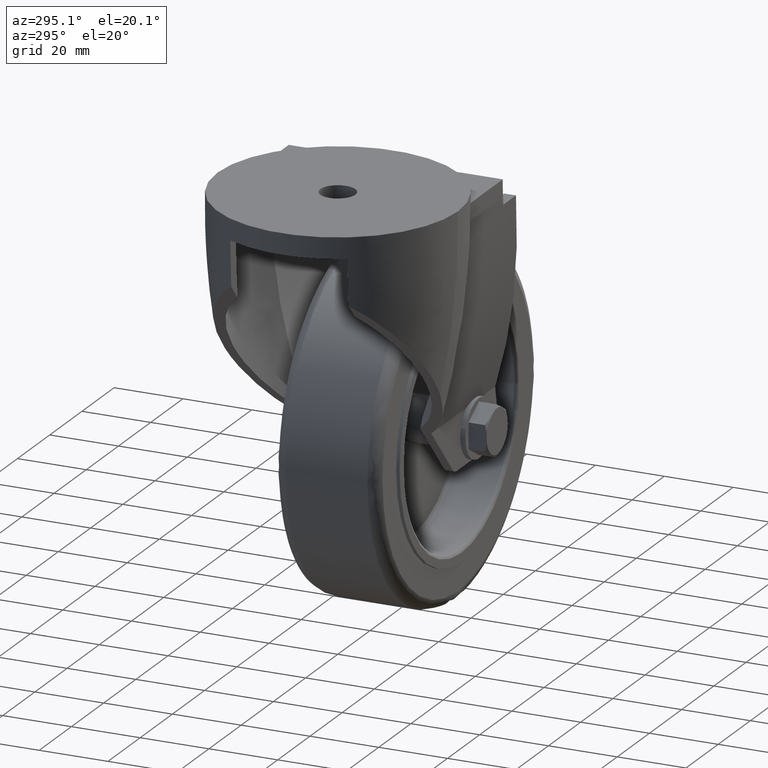
[diagram: clean part render]
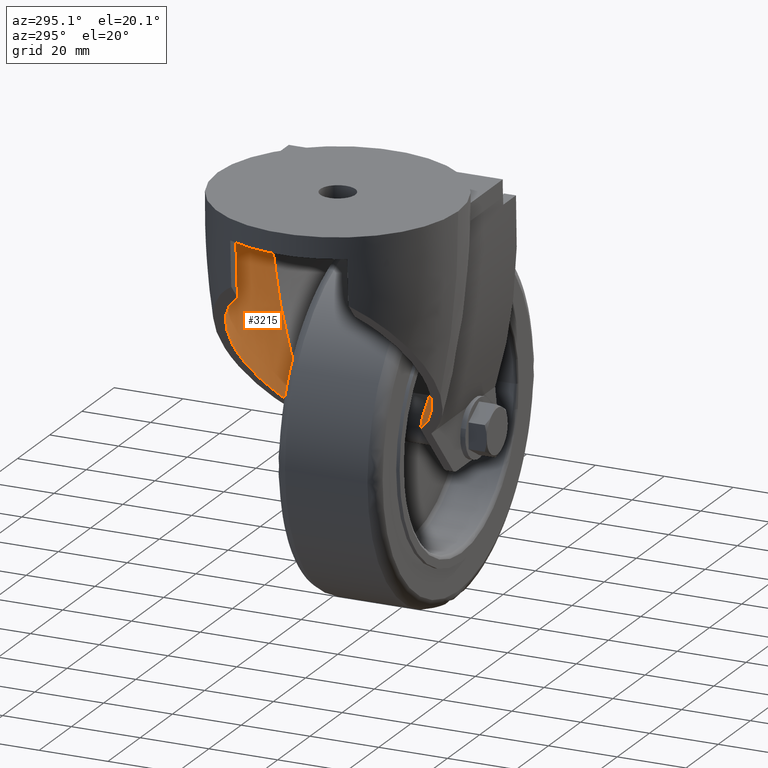
[diagram: same view with one face highlighted and labeled with its STEP entity id]
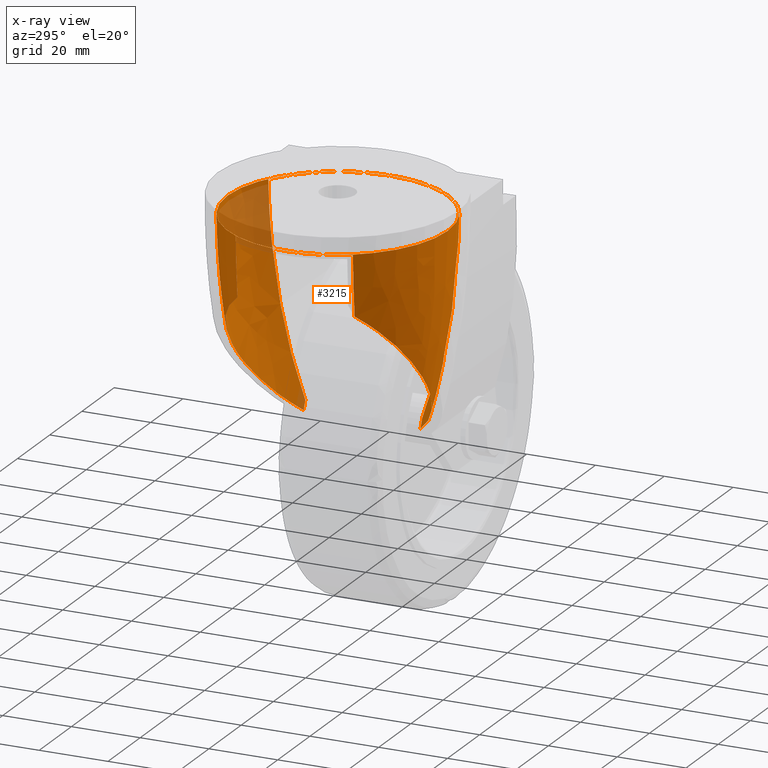
[diagram: x-ray of the same camera — body ghosted, the highlighted face saturated]
A machine part, auxiliary view. The second image highlights one B-rep face of the part: STEP entity #3215.
The next image is the same camera in x-ray: the body ghosted, the highlighted face saturated — about 12% of this face is hidden behind the body in this view.
In plain terms, the highlighted face is a freeform B-spline surface patch.
Its self-contained STEP definition (entity closure, byte-faithful):
#3009=CARTESIAN_POINT('',(-3.171995E-013,-22.586357826698134,-71.848894879973287));
#3010=CARTESIAN_POINT('',(-22.586357826698443,-22.586357826698158,-71.848894879973287));
#3011=CARTESIAN_POINT('',(-22.586357826698467,-3.229259E-014,-71.848894879973287));
#3012=CARTESIAN_POINT('',(-22.586357826698492,22.586357826698094,-71.848894879973287));
#3013=CARTESIAN_POINT('',(-3.649215E-013,22.586357826698119,-71.848894879973287));
#3014=CARTESIAN_POINT('',(22.586357826697760,22.586357826698144,-71.848894879973287));
#3015=CARTESIAN_POINT('',(22.586357826697785,1.542948E-014,-71.848894879973287));
#3016=CARTESIAN_POINT('',(22.586357826697810,-22.586357826698109,-71.848894879973287));
#3017=CARTESIAN_POINT('',(-3.171995E-013,-22.586357826698134,-71.848894879973287));
#3018=CARTESIAN_POINT('',(-3.128362E-013,-31.592761204718585,-41.049012827408042));
#3019=CARTESIAN_POINT('',(-31.592761204718894,-31.592761204718613,-41.049012827408042));
#3020=CARTESIAN_POINT('',(-31.592761204718922,-3.288398E-014,-41.049012827408049));
#3021=CARTESIAN_POINT('',(-31.592761204718951,31.592761204718549,-41.049012827408056));
#3022=CARTESIAN_POINT('',(-3.692848E-013,31.592761204718578,-41.049012827408056));
#3023=CARTESIAN_POINT('',(31.592761204718212,31.592761204718606,-41.049012827408056));
#3024=CARTESIAN_POINT('',(31.592761204718240,2.356466E-014,-41.049012827408049));
#3025=CARTESIAN_POINT('',(31.592761204718265,-31.592761204718556,-41.049012827408042));
#3026=CARTESIAN_POINT('',(-3.128362E-013,-31.592761204718585,-41.049012827408042));
#3027=CARTESIAN_POINT('',(-3.126388E-013,-32.000233137938608,-8.961912570713196));
#3028=CARTESIAN_POINT('',(-32.000233137938920,-32.000233137938636,-8.961912570713196));
#3029=CARTESIAN_POINT('',(-32.000233137938949,-2.915183E-014,-8.961912570713199));
#3030=CARTESIAN_POINT('',(-32.000233137938977,32.000233137938579,-8.961912570713203));
#3031=CARTESIAN_POINT('',(-3.694822E-013,32.000233137938608,-8.961912570713203));
#3032=CARTESIAN_POINT('',(32.000233137938238,32.000233137938636,-8.961912570713203));
#3033=CARTESIAN_POINT('',(32.000233137938267,2.769159E-014,-8.961912570713199));
#3034=CARTESIAN_POINT('',(32.000233137938295,-32.000233137938579,-8.961912570713196));
#3035=CARTESIAN_POINT('',(-3.126388E-013,-32.000233137938608,-8.961912570713196));
#3043=(BOUNDED_SURFACE()B_SPLINE_SURFACE(2,2,((#3009,#3018,#3027),(#3010,#3019,#3028),(#3011,#3020,#3029),(#3012,#3021,#3030),(#3013,#3022,#3031),(#3014,#3023,#3032),(#3015,#3024,#3033),(#3016,#3025,#3034),(#3017,#3026,#3035)),.UNSPECIFIED.,.T.,.F.,.U.)B_SPLINE_SURFACE_WITH_KNOTS((3,2,2,2,3),(3,3),(0.0,0.250000000000000,0.500000000000000,0.750000000000000,1.0),(0.0,1.0),.UNSPECIFIED.)GEOMETRIC_REPRESENTATION_ITEM()RATIONAL_B_SPLINE_SURFACE(((1.0,0.990780675508825,1.0),(0.707106781186548,0.700587734320878,0.707106781186548),(1.0,0.990780675508825,1.0),(0.707106781186548,0.700587734320878,0.707106781186548),(1.0,0.990780675508825,1.0),(0.707106781186548,0.700587734320878,0.707106781186548),(1.0,0.990780675508825,1.0),(0.707106781186548,0.700587734320878,0.707106781186548),(1.0,0.990780675508825,1.0)))REPRESENTATION_ITEM('')SURFACE());
#3044=CARTESIAN_POINT('',(-3.410605E-013,32.000233137938700,-8.961912570713205));
#3045=VERTEX_POINT('',#3044);
#3046=CARTESIAN_POINT('',(-3.126388E-013,-32.000233137938665,-8.961912570713203));
#3047=VERTEX_POINT('',#3046);
#3048=CARTESIAN_POINT('',(-3.410605E-013,0.0,-8.961912570713203));
#3049=DIRECTION('',(0.0,-6.123234E-017,-1.0));
#3050=DIRECTION('',(0.0,-1.0,6.123234E-017));
#3051=AXIS2_PLACEMENT_3D('',#3048,#3049,#3050);
#3052=CIRCLE('',#3051,32.000233137938700);
#3053=EDGE_CURVE('',#3045,#3047,#3052,.T.);
#3054=ORIENTED_EDGE('',*,*,#3053,.F.);
#3055=CARTESIAN_POINT('',(-3.410605E-013,0.0,-8.961912570713203));
#3056=DIRECTION('',(0.0,-6.123234E-017,-1.0));
#3057=DIRECTION('',(0.0,-1.0,6.123234E-017));
#3058=AXIS2_PLACEMENT_3D('',#3055,#3056,#3057);
#3059=CIRCLE('',#3058,32.000233137938700);
#3060=EDGE_CURVE('',#3047,#3045,#3059,.T.);
#3061=ORIENTED_EDGE('',*,*,#3060,.F.);
#3062=CARTESIAN_POINT('',(-3.126388E-013,-26.763269676771415,-55.371295994122995));
#3063=VERTEX_POINT('',#3062);
#3064=CARTESIAN_POINT('',(-4.263256E-013,202.663913116929340,-5.981928322621235));
#3065=DIRECTION('',(-1.0,-4.844662E-016,-4.959211E-022));
#3066=DIRECTION('',(4.844271E-016,-0.999919378302395,-0.012697909093734));
#3067=AXIS2_PLACEMENT_3D('',#3064,#3065,#3066);
#3068=CIRCLE('',#3067,234.683066802112730);
#3069=EDGE_CURVE('',#3063,#3047,#3068,.T.);
#3070=ORIENTED_EDGE('',*,*,#3069,.F.);
#3071=CARTESIAN_POINT('',(-25.997829618689778,-17.070057319301895,-26.720628955868229));
#3072=VERTEX_POINT('',#3071);
#3073=CARTESIAN_POINT('',(-2.273737E-013,-26.763269676771415,-55.371295994122882));
#3074=CARTESIAN_POINT('',(-0.614587426702201,-26.909073834746835,-54.693995619953292));
#3075=CARTESIAN_POINT('',(-2.219219619268642,-27.226570763894756,-52.925625593074024));
#3076=CARTESIAN_POINT('',(-4.880962621350761,-27.487757558576561,-49.992276399796431));
#3077=CARTESIAN_POINT('',(-7.363643356051398,-27.424364957538387,-47.256261125074168));
#3078=CARTESIAN_POINT('',(-10.285260751127311,-27.082730510361444,-44.036519763673603));
#3079=CARTESIAN_POINT('',(-13.539265957713170,-26.317679306232833,-40.450473469235995));
#3080=CARTESIAN_POINT('',(-17.287113011207623,-24.696424885429110,-36.320193522258656));
#3081=CARTESIAN_POINT('',(-19.988399160901338,-22.983679663955513,-33.343265835584994));
#3082=CARTESIAN_POINT('',(-22.238062819181195,-21.217583582109569,-30.864045610431795));
#3083=CARTESIAN_POINT('',(-24.110657615278114,-19.427890744904744,-28.800365341702680));
#3084=CARTESIAN_POINT('',(-25.461474775514077,-17.791388445375276,-27.311719795822576));
#3085=CARTESIAN_POINT('',(-25.997834550862819,-17.070049722940837,-26.720629479376221));
#3086=B_SPLINE_CURVE_WITH_KNOTS('',3,(#3073,#3074,#3075,#3076,#3077,#3078,#3079,#3080,#3081,#3082,#3083,#3084,#3085),.UNSPECIFIED.,.F.,.U.,(4,1,1,1,1,1,1,1,1,1,4),(0.0,2.778685228067535,7.223742526664044,11.899304513463292,13.853604178024506,20.304977110839516,26.578740725815894,31.240803553927275,33.394100059583572,37.929782912720867,41.158542147736640),.UNSPECIFIED.);
#3087=EDGE_CURVE('',#3063,#3072,#3086,.T.);
#3088=ORIENTED_EDGE('',*,*,#3087,.T.);
#3089=CARTESIAN_POINT('',(-27.065371419358144,-17.070057319301895,-9.075096515549838));
#3090=VERTEX_POINT('',#3089);
#3091=CARTESIAN_POINT('',(-25.997976963654246,-17.070057319301895,-26.720644591382143));
#3092=CARTESIAN_POINT('',(-26.189725833670124,-17.070057319301895,-24.913653747042446));
#3093=CARTESIAN_POINT('',(-26.728508294223786,-17.070057319301895,-19.043030223226960));
#3094=CARTESIAN_POINT('',(-27.001846957856316,-17.070057319301895,-13.151359661558452));
#3095=CARTESIAN_POINT('',(-27.065371419358144,-17.070057319301895,-9.075096515550122));
#3096=B_SPLINE_CURVE_WITH_KNOTS('',3,(#3091,#3092,#3093,#3094,#3095),.UNSPECIFIED.,.F.,.U.,(4,1,4),(69.887315177663183,75.338698572137005,87.570928122357131),.UNSPECIFIED.);
#3097=EDGE_CURVE('',#3072,#3090,#3096,.T.);
#3098=ORIENTED_EDGE('',*,*,#3097,.T.);
#3099=CARTESIAN_POINT('',(-27.153236046194223,16.929942680698105,-9.075096515549838));
#3100=VERTEX_POINT('',#3099);
#3101=CARTESIAN_POINT('',(-3.410605E-013,0.0,-9.075096515549838));
#3102=DIRECTION('',(-5.438734E-032,-6.123234E-017,-1.0));
#3103=DIRECTION('',(8.882126E-016,-1.0,6.123234E-017));
#3104=AXIS2_PLACEMENT_3D('',#3101,#3102,#3103);
#3105=CIRCLE('',#3104,31.998768522429799);
#3106=EDGE_CURVE('',#3090,#3100,#3105,.T.);
#3107=ORIENTED_EDGE('',*,*,#3106,.T.);
#3108=CARTESIAN_POINT('',(-26.101317018197520,16.929942680698105,-26.606581626939665));
#3109=VERTEX_POINT('',#3108);
#3110=CARTESIAN_POINT('',(-27.153236046194223,16.929942680698105,-9.075096515550122));
#3111=CARTESIAN_POINT('',(-27.084780196197727,16.929942680698105,-13.482059383246458));
#3112=CARTESIAN_POINT('',(-26.799531355890757,16.929942680698105,-19.335330524387079));
#3113=CARTESIAN_POINT('',(-26.252859697105009,16.929942680698105,-25.166601778205383));
#3114=CARTESIAN_POINT('',(-26.101484887569434,16.929942680698105,-26.606599273633037));
#3115=B_SPLINE_CURVE_WITH_KNOTS('',3,(#3110,#3111,#3112,#3113,#3114),.UNSPECIFIED.,.F.,.U.,(4,1,4),(0.0,13.224942400271381,17.568647375228714),.UNSPECIFIED.);
#3116=EDGE_CURVE('',#3100,#3109,#3115,.T.);
#3117=ORIENTED_EDGE('',*,*,#3116,.T.);
#3118=CARTESIAN_POINT('',(14.951028121020443,16.929942680698105,-71.847937885298165));
#3119=VERTEX_POINT('',#3118);
#3120=CARTESIAN_POINT('',(-26.101323571654675,16.929932465342517,-26.606582316025658));
#3121=CARTESIAN_POINT('',(-25.754152735714612,17.403147028266062,-26.989178716255942));
#3122=CARTESIAN_POINT('',(-24.836034892636121,18.572107913049763,-28.000968218963415));
#3123=CARTESIAN_POINT('',(-23.241732100461988,20.289058728082409,-29.757962567121702));
#3124=CARTESIAN_POINT('',(-21.262786379548146,22.034556972286168,-31.938838906984934));
#3125=CARTESIAN_POINT('',(-18.576198029691881,23.954291009713870,-34.899569501400045));
#3126=CARTESIAN_POINT('',(-15.236661017807279,25.676592699799357,-38.579874933519598));
#3127=CARTESIAN_POINT('',(-11.482355082287796,26.861384411159520,-42.717273075313194));
#3128=CARTESIAN_POINT('',(-8.873435146685608,27.274408081257548,-45.592409083014225));
#3129=CARTESIAN_POINT('',(-6.255370354558124,27.476571175445770,-48.477623101372849));
#3130=CARTESIAN_POINT('',(-3.196763897600988,27.430419588032692,-51.848331996138207));
#3131=CARTESIAN_POINT('',(0.680228580321540,26.700137210233720,-56.120935561681115));
#3132=CARTESIAN_POINT('',(4.230308156430482,25.435657499799959,-60.033267942912694));
#3133=CARTESIAN_POINT('',(7.701846580189681,23.675869579622827,-63.859044252168765));
#3134=CARTESIAN_POINT('',(10.823721556063219,21.414657322991616,-67.299479539679453));
#3135=CARTESIAN_POINT('',(13.344937327693003,18.914317559645838,-70.077957763124857));
#3136=CARTESIAN_POINT('',(14.486791534259595,17.539498222515476,-71.336334463098240));
#3137=CARTESIAN_POINT('',(14.951021755300133,16.929949399405018,-71.847935073118606));
#3138=B_SPLINE_CURVE_WITH_KNOTS('',3,(#3120,#3121,#3122,#3123,#3124,#3125,#3126,#3127,#3128,#3129,#3130,#3131,#3132,#3133,#3134,#3135,#3136,#3137),.UNSPECIFIED.,.F.,.U.,(4,1,1,1,1,1,1,1,1,1,1,1,1,1,1,4),(0.0,2.102170118289831,5.390642971043302,8.776296702770077,12.362032433476035,18.682893150020572,24.517790609313138,29.467460562805314,30.383344150683200,36.220893801569432,43.103748412070019,47.794618373222832,52.500279103726186,59.458465324512872,63.244305081115421,66.008969246550464),.UNSPECIFIED.);
#3139=EDGE_CURVE('',#3109,#3119,#3138,.T.);
#3140=ORIENTED_EDGE('',*,*,#3139,.T.);
#3141=CARTESIAN_POINT('',(15.998477758083453,16.929942680698105,-69.381568423183353));
#3142=VERTEX_POINT('',#3141);
#3143=CARTESIAN_POINT('',(14.951118658776373,16.929942680698154,-71.847977894711747));
#3144=CARTESIAN_POINT('',(15.312155147403331,16.929942680698161,-71.030984329234499));
#3145=CARTESIAN_POINT('',(15.660968595140915,16.929942680698158,-70.208602107415118));
#3146=CARTESIAN_POINT('',(15.998738460920894,16.929942680698147,-69.381674910867829));
#3147=B_SPLINE_CURVE_WITH_KNOTS('',3,(#3143,#3144,#3145,#3146),.UNSPECIFIED.,.F.,.U.,(4,4),(23.612420264868074,26.292138594577811),.UNSPECIFIED.);
#3148=EDGE_CURVE('',#3119,#3142,#3147,.T.);
#3149=ORIENTED_EDGE('',*,*,#3148,.T.);
#3150=CARTESIAN_POINT('',(15.998477758083453,27.712269780300289,-9.075096515549838));
#3151=VERTEX_POINT('',#3150);
#3152=CARTESIAN_POINT('',(15.998482029845718,16.929937970259743,-69.381570168331336));
#3153=CARTESIAN_POINT('',(15.998482029845718,17.910750869851540,-66.840883621923012));
#3154=CARTESIAN_POINT('',(15.998475625449089,19.772938838983009,-61.463719497238237));
#3155=CARTESIAN_POINT('',(15.998478701278970,22.536336877258009,-51.656360482902649));
#3156=CARTESIAN_POINT('',(15.998477514115564,24.859193414181505,-40.643873822908240));
#3157=CARTESIAN_POINT('',(15.998477826340320,26.616397091071576,-28.342151266467347));
#3158=CARTESIAN_POINT('',(15.998477746687399,27.459174024202071,-18.035947333793111));
#3159=CARTESIAN_POINT('',(15.998477758083453,27.675552086705920,-11.487526515328291));
#3160=CARTESIAN_POINT('',(15.998477758083453,27.712269780300289,-9.075096515550122));
#3161=B_SPLINE_CURVE_WITH_KNOTS('',3,(#3152,#3153,#3154,#3155,#3156,#3157,#3158,#3159,#3160),.UNSPECIFIED.,.F.,.U.,(4,1,1,1,1,1,4),(0.0,8.171641704264950,17.061079425465888,30.556431835159124,41.911415684349848,54.325109748433022,61.563619466659915),.UNSPECIFIED.);
#3162=EDGE_CURVE('',#3142,#3151,#3161,.T.);
#3163=ORIENTED_EDGE('',*,*,#3162,.T.);
#3164=CARTESIAN_POINT('',(15.998477758083482,-27.712269780300176,-9.075096515549838));
#3165=VERTEX_POINT('',#3164);
#3166=CARTESIAN_POINT('',(-3.410605E-013,0.0,-9.075096515549838));
#3167=DIRECTION('',(-5.438734E-032,-6.123234E-017,-1.0));
#3168=DIRECTION('',(8.882126E-016,-1.0,6.123234E-017));
#3169=AXIS2_PLACEMENT_3D('',#3166,#3167,#3168);
#3170=CIRCLE('',#3169,31.998768522429799);
#3171=EDGE_CURVE('',#3151,#3165,#3170,.T.);
#3172=ORIENTED_EDGE('',*,*,#3171,.T.);
#3173=CARTESIAN_POINT('',(15.998477758083482,-17.070057319301895,-69.016779864440082));
#3174=VERTEX_POINT('',#3173);
#3175=CARTESIAN_POINT('',(15.998477758083482,-27.712269780300176,-9.075096515550122));
#3176=CARTESIAN_POINT('',(15.998477758083482,-27.675552086705864,-11.487526515328291));
#3177=CARTESIAN_POINT('',(15.998477753191281,-27.465595016467489,-17.841934993525236));
#3178=CARTESIAN_POINT('',(15.998477784276560,-26.707649965393102,-27.276906370432535));
#3179=CARTESIAN_POINT('',(15.998477684417821,-25.353580577046671,-37.343742798966225));
#3180=CARTESIAN_POINT('',(15.998477977742539,-23.937088444888332,-45.013148197683229));
#3181=CARTESIAN_POINT('',(15.998477213373491,-22.202043046810559,-52.698920388377537));
#3182=CARTESIAN_POINT('',(15.998481316906634,-20.534332425598336,-58.872937980063348));
#3183=CARTESIAN_POINT('',(15.998471843997038,-18.617863284517057,-64.809903734754016));
#3184=CARTESIAN_POINT('',(15.998489207286639,-17.580922836717775,-67.679988680307702));
#3185=CARTESIAN_POINT('',(15.998489207286639,-17.070044804297424,-69.016784533915938));
#3186=B_SPLINE_CURVE_WITH_KNOTS('',3,(#3175,#3176,#3177,#3178,#3179,#3180,#3181,#3182,#3183,#3184,#3185),.UNSPECIFIED.,.F.,.U.,(4,1,1,1,1,1,1,1,4),(0.0,7.238509718226894,19.069937262666731,28.384042776745996,37.702191637715757,42.459731055246415,52.019537423077047,56.879369749595590,61.172850572095875),.UNSPECIFIED.);
#3187=EDGE_CURVE('',#3165,#3174,#3186,.T.);
#3188=ORIENTED_EDGE('',*,*,#3187,.T.);
#3189=CARTESIAN_POINT('',(14.843608935545660,-17.070057319301895,-71.729557568106372));
#3190=VERTEX_POINT('',#3189);
#3191=CARTESIAN_POINT('',(15.998509213723661,-17.070057319301895,-69.016792694849244));
#3192=CARTESIAN_POINT('',(15.953077188580252,-17.070057319301895,-69.128176004887450));
#3193=CARTESIAN_POINT('',(15.595970816650393,-17.070057319301895,-69.999238137056693));
#3194=CARTESIAN_POINT('',(15.210347685615435,-17.070057319301895,-70.903355842961503));
#3195=CARTESIAN_POINT('',(14.860433550643346,-17.070057319301895,-71.691741330261863));
#3196=CARTESIAN_POINT('',(14.843616036649257,-17.070057319301895,-71.729560725822367));
#3197=B_SPLINE_CURVE_WITH_KNOTS('',3,(#3191,#3192,#3193,#3194,#3195,#3196),.UNSPECIFIED.,.F.,.U.,(4,1,1,4),(61.281765641642863,61.642653224072809,64.106092753129658,64.230260867379030),.UNSPECIFIED.);
#3198=EDGE_CURVE('',#3174,#3190,#3197,.T.);
#3199=ORIENTED_EDGE('',*,*,#3198,.T.);
#3200=CARTESIAN_POINT('',(14.843612193011211,-17.070053926570722,-71.729559016426720));
#3201=CARTESIAN_POINT('',(14.246942582920013,-17.843208513759407,-71.072004805890685));
#3202=CARTESIAN_POINT('',(12.739124814543970,-19.592675801133055,-69.410331810364369));
#3203=CARTESIAN_POINT('',(10.649662065168002,-21.481499034311526,-67.107657124282468));
#3204=CARTESIAN_POINT('',(8.099243901522385,-23.354176920576208,-64.296992713220561));
#3205=CARTESIAN_POINT('',(5.359376221782952,-24.943198473012330,-61.277546827206102));
#3206=CARTESIAN_POINT('',(2.427124269522466,-26.115073873999052,-58.046085791706737));
#3207=CARTESIAN_POINT('',(0.619723671920866,-26.616247000686428,-56.054256719704831));
#3208=CARTESIAN_POINT('',(-2.273737E-013,-26.763269676771415,-55.371295994122882));
#3209=B_SPLINE_CURVE_WITH_KNOTS('',3,(#3200,#3201,#3202,#3203,#3204,#3205,#3206,#3207,#3208),.UNSPECIFIED.,.F.,.U.,(4,1,1,1,1,1,4),(0.0,3.533590945473480,8.521628627790923,10.893577073032283,16.225339000133832,21.627750609693020,24.429674919914348),.UNSPECIFIED.);
#3210=EDGE_CURVE('',#3190,#3063,#3209,.T.);
#3211=ORIENTED_EDGE('',*,*,#3210,.T.);
#3212=ORIENTED_EDGE('',*,*,#3069,.T.);
#3213=EDGE_LOOP('',(#3054,#3061,#3070,#3088,#3098,#3107,#3117,#3140,#3149,#3163,#3172,#3188,#3199,#3211,#3212));
#3214=FACE_OUTER_BOUND('',#3213,.T.);
#3215=ADVANCED_FACE('',(#3214),#3043,.T.);